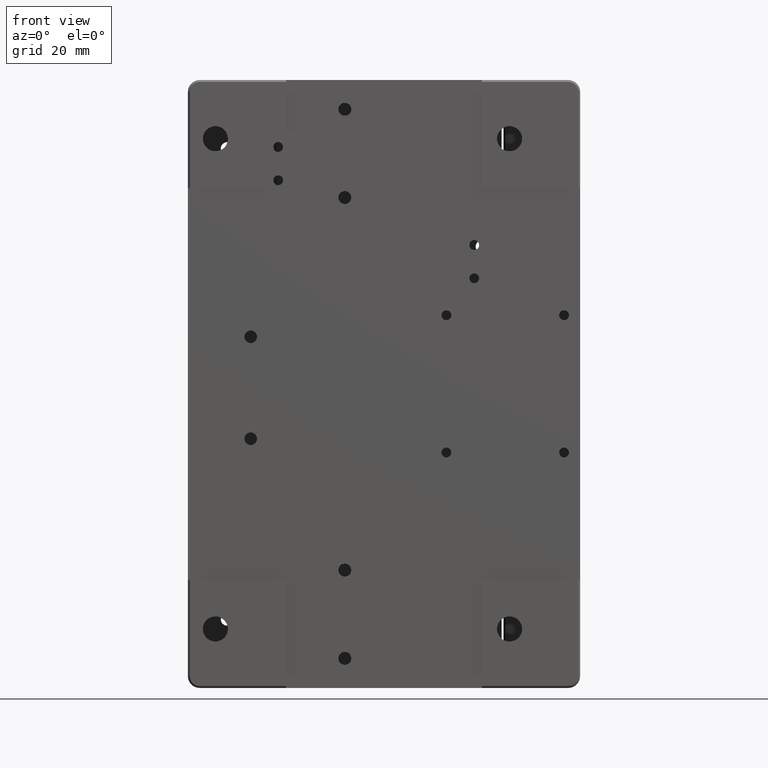
[diagram: clean part render]
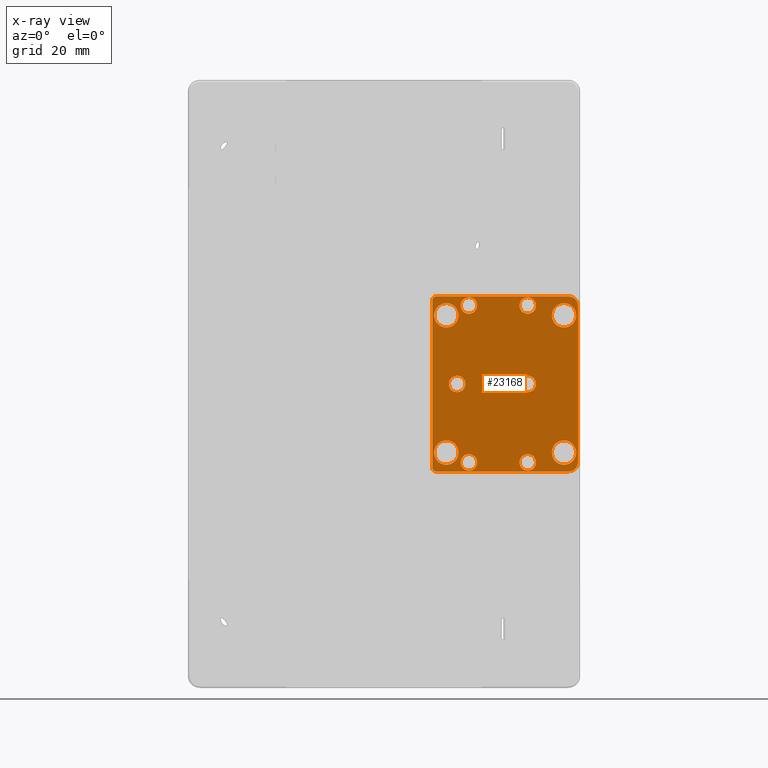
[diagram: x-ray — body ghosted, one internal face saturated and labeled with its STEP entity id]
A machine part, front view, then the same camera in x-ray: the body is ghosted and one INTERNAL B-rep face — a face not visible from any outside direction — is saturated and labeled: STEP entity #23168.
In plain terms, the highlighted planar face has unit normal (0, 1, 0).
Its self-contained STEP definition (entity closure, byte-faithful):
#171 = DIRECTION ( 'NONE',  ( 0.000000000000000000, 1.000000000000000000, 0.000000000000000000 ) ) ;
#197 = VERTEX_POINT ( 'NONE', #5784 ) ;
#691 = EDGE_CURVE ( 'NONE', #7508, #43371, #41311, .T. ) ;
#806 = VERTEX_POINT ( 'NONE', #13308 ) ;
#829 = CARTESIAN_POINT ( 'NONE',  ( 13.15000372727999967, 2.238232999982048277E-06, 22.29999852259000193 ) ) ;
#983 = DIRECTION ( 'NONE',  ( 5.067639653370492017E-05, 0.000000000000000000, -0.9999999987159514658 ) ) ;
#1028 = DIRECTION ( 'NONE',  ( 0.000000000000000000, 0.000000000000000000, -1.000000000000000000 ) ) ;
#1032 = DIRECTION ( 'NONE',  ( 0.000000000000000000, 1.000000000000000000, 0.000000000000000000 ) ) ;
#1087 = DIRECTION ( 'NONE',  ( 5.067639653818178068E-05, 0.000000000000000000, -0.9999999987159514658 ) ) ;
#1528 = CARTESIAN_POINT ( 'NONE',  ( 36.64999999999999858, 0.000000000000000000, -2.100000000000000089 ) ) ;
#2035 = CARTESIAN_POINT ( 'NONE',  ( 21.65000000000000213, 0.000000000000000000, 17.89999999999999858 ) ) ;
#2195 = DIRECTION ( 'NONE',  ( 0.000000000000000000, 0.000000000000000000, 1.000000000000000000 ) ) ;
#2454 = CIRCLE ( 'NONE', #21562, 2.100000000000000977 ) ;
#2570 = CARTESIAN_POINT ( 'NONE',  ( 42.80008407395404646, 1.355252715606880543E-17, 17.50000000000000000 ) ) ;
#2618 = CIRCLE ( 'NONE', #20970, 2.100000000000000977 ) ;
#2712 = AXIS2_PLACEMENT_3D ( 'NONE', #5646, #33267, #2195 ) ;
#3031 = ORIENTED_EDGE ( 'NONE', *, *, #691, .F. ) ;
#3202 = ORIENTED_EDGE ( 'NONE', *, *, #15530, .F. ) ;
#3394 = EDGE_CURVE ( 'NONE', #24703, #19573, #42906, .T. ) ;
#3492 = CARTESIAN_POINT ( 'NONE',  ( 36.64999999999999858, 0.000000000000000000, 2.100000000000000089 ) ) ;
#3854 = ORIENTED_EDGE ( 'NONE', *, *, #32404, .F. ) ;
#3955 = FACE_BOUND ( 'NONE', #14637, .T. ) ;
#4055 = EDGE_CURVE ( 'NONE', #24182, #197, #21672, .T. ) ;
#4079 = CIRCLE ( 'NONE', #2712, 2.100000000000000977 ) ;
#4179 = DIRECTION ( 'NONE',  ( 0.000000000000000000, 1.000000000000000000, 0.000000000000000000 ) ) ;
#4641 = CARTESIAN_POINT ( 'NONE',  ( 15.90000000000000036, 0.000000000000000000, 17.50000000000000000 ) ) ;
#4722 = EDGE_LOOP ( 'NONE', ( #19922, #13649, #27297 ) ) ;
#4814 = AXIS2_PLACEMENT_3D ( 'NONE', #26145, #22674, #18074 ) ;
#4826 = EDGE_CURVE ( 'NONE', #21329, #44485, #14168, .T. ) ;
#4947 = VERTEX_POINT ( 'NONE', #8271 ) ;
#5088 = DIRECTION ( 'NONE',  ( 0.000000000000000000, 1.000000000000000000, 0.000000000000000000 ) ) ;
#5157 = VECTOR ( 'NONE', #11743, 1000.000000000000114 ) ;
#5540 = VERTEX_POINT ( 'NONE', #23250 ) ;
#5582 = EDGE_LOOP ( 'NONE', ( #7676, #24979, #43119 ) ) ;
#5646 = CARTESIAN_POINT ( 'NONE',  ( 36.64999999999999858, 0.000000000000000000, 20.00000000000000000 ) ) ;
#5784 = CARTESIAN_POINT ( 'NONE',  ( 15.90005236288000212, 1.185932199969028100E-05, -14.40006628545000034 ) ) ;
#6090 = CARTESIAN_POINT ( 'NONE',  ( 12.35000144212000350, 2.244535000136410607E-06, -21.49999600828000368 ) ) ;
#6302 = DIRECTION ( 'NONE',  ( 0.000000000000000000, 1.000000000000000000, 0.000000000000000000 ) ) ;
#6714 = CARTESIAN_POINT ( 'NONE',  ( 45.90005236288000390, 1.185932199969028100E-05, 20.59993371455000144 ) ) ;
#6947 = EDGE_LOOP ( 'NONE', ( #28662, #38601 ) ) ;
#7181 = DIRECTION ( 'NONE',  ( 0.000000000000000000, 1.000000000000000000, 0.000000000000000000 ) ) ;
#7383 = FACE_OUTER_BOUND ( 'NONE', #19954, .T. ) ;
#7418 = VERTEX_POINT ( 'NONE', #12269 ) ;
#7508 = VERTEX_POINT ( 'NONE', #20296 ) ;
#7625 = FACE_BOUND ( 'NONE', #25294, .T. ) ;
#7676 = ORIENTED_EDGE ( 'NONE', *, *, #4826, .F. ) ;
#7721 = EDGE_CURVE ( 'NONE', #24649, #31398, #8810, .T. ) ;
#7827 = CARTESIAN_POINT ( 'NONE',  ( 36.64999999999999858, 0.000000000000000000, -22.10000000000000142 ) ) ;
#7857 = FACE_BOUND ( 'NONE', #33474, .T. ) ;
#8068 = DIRECTION ( 'NONE',  ( 0.000000000000000000, 1.000000000000000000, 0.000000000000000000 ) ) ;
#8271 = CARTESIAN_POINT ( 'NONE',  ( 21.65000000000000213, 0.000000000000000000, -22.10000000000000142 ) ) ;
#8810 = CIRCLE ( 'NONE', #13192, 2.100000000000000089 ) ;
#8821 = DIRECTION ( 'NONE',  ( 5.067639653370492017E-05, 0.000000000000000000, 0.9999999987159514658 ) ) ;
#8828 = AXIS2_PLACEMENT_3D ( 'NONE', #33055, #9569, #13243 ) ;
#8937 = AXIS2_PLACEMENT_3D ( 'NONE', #29113, #29571, #18267 ) ;
#8972 = LINE ( 'NONE', #25787, #42767 ) ;
#9382 = EDGE_CURVE ( 'NONE', #16598, #806, #30896, .T. ) ;
#9503 = DIRECTION ( 'NONE',  ( 0.000000000000000000, 0.000000000000000000, -1.000000000000000000 ) ) ;
#9569 = DIRECTION ( 'NONE',  ( 0.000000000000000000, 1.000000000000000000, 0.000000000000000000 ) ) ;
#9720 = CARTESIAN_POINT ( 'NONE',  ( 21.65000000063200147, 0.000000000000000000, -17.89999999999999858 ) ) ;
#9875 = ORIENTED_EDGE ( 'NONE', *, *, #34959, .F. ) ;
#9969 = CARTESIAN_POINT ( 'NONE',  ( 12.80008407395405357, 1.355252715606880543E-17, -17.50000000000000000 ) ) ;
#9972 = DIRECTION ( 'NONE',  ( 5.067639653818178068E-05, 0.000000000000000000, -0.9999999987159514658 ) ) ;
#10061 = VERTEX_POINT ( 'NONE', #42989 ) ;
#10438 = DIRECTION ( 'NONE',  ( 0.000000000000000000, 1.000000000000000000, 0.000000000000000000 ) ) ;
#10765 = VERTEX_POINT ( 'NONE', #39426 ) ;
#10851 = FACE_BOUND ( 'NONE', #5582, .T. ) ;
#10873 = DIRECTION ( 'NONE',  ( 0.000000000000000000, 0.000000000000000000, 1.000000000000000000 ) ) ;
#10887 = DIRECTION ( 'NONE',  ( 0.000000000000000000, 1.000000000000000000, 0.000000000000000000 ) ) ;
#11463 = DIRECTION ( 'NONE',  ( 0.000000000000000000, 1.000000000000000000, 0.000000000000000000 ) ) ;
#11743 = DIRECTION ( 'NONE',  ( 0.9999999999999996669, 1.910396004777999435E-08, 1.804235615058999541E-08 ) ) ;
#11813 = CARTESIAN_POINT ( 'NONE',  ( 15.90000000000000036, 0.000000000000000000, -17.50000000000000000 ) ) ;
#12011 = ORIENTED_EDGE ( 'NONE', *, *, #42827, .F. ) ;
#12269 = CARTESIAN_POINT ( 'NONE',  ( 15.90005236610000239, 1.185932199969028100E-05, -20.59993371455000144 ) ) ;
#12322 = CARTESIAN_POINT ( 'NONE',  ( 45.90005236609999884, 1.185932199969028100E-05, 14.40006628545000034 ) ) ;
#12820 = ORIENTED_EDGE ( 'NONE', *, *, #25928, .F. ) ;
#13010 = DIRECTION ( 'NONE',  ( 0.000000000000000000, 0.000000000000000000, -1.000000000000000000 ) ) ;
#13192 = AXIS2_PLACEMENT_3D ( 'NONE', #25582, #8068, #35684 ) ;
#13243 = DIRECTION ( 'NONE',  ( 5.067639653818178068E-05, 0.000000000000000000, -0.9999999987159514658 ) ) ;
#13308 = CARTESIAN_POINT ( 'NONE',  ( 13.15000653909000050, 1.929484000091213902E-06, -22.29999927791000047 ) ) ;
#13466 = CARTESIAN_POINT ( 'NONE',  ( 36.64999999999999858, 0.000000000000000000, 20.00000000000000000 ) ) ;
#13600 = CARTESIAN_POINT ( 'NONE',  ( 36.64999999999999858, 0.000000000000000000, 17.89999999999999858 ) ) ;
#13649 = ORIENTED_EDGE ( 'NONE', *, *, #17211, .F. ) ;
#13708 = DIRECTION ( 'NONE',  ( 0.000000000000000000, 1.000000000000000000, 0.000000000000000000 ) ) ;
#13724 = DIRECTION ( 'NONE',  ( 0.9999999998733717366, 0.000000000000000000, -1.591402963367344523E-05 ) ) ;
#13821 = CIRCLE ( 'NONE', #35862, 2.100000000000000977 ) ;
#13907 = EDGE_CURVE ( 'NONE', #35444, #4947, #17478, .T. ) ;
#14065 = CARTESIAN_POINT ( 'NONE',  ( 45.90005236288000390, 1.185932199969028100E-05, -14.40006628545000034 ) ) ;
#14090 = CARTESIAN_POINT ( 'NONE',  ( 47.14998538549000529, 2.579018000027633040E-06, -22.29999866446999945 ) ) ;
#14107 = ORIENTED_EDGE ( 'NONE', *, *, #30008, .F. ) ;
#14168 = CIRCLE ( 'NONE', #39889, 3.099915926045998305 ) ;
#14194 = DIRECTION ( 'NONE',  ( 5.067639653258571860E-05, 0.000000000000000000, -0.9999999987159514658 ) ) ;
#14197 = CIRCLE ( 'NONE', #43592, 2.100000000000000089 ) ;
#14411 = CARTESIAN_POINT ( 'NONE',  ( 49.44999825487000322, 2.716540999959937697E-06, 19.99998778823999857 ) ) ;
#14525 = FACE_BOUND ( 'NONE', #26908, .T. ) ;
#14637 = EDGE_LOOP ( 'NONE', ( #18907, #12820 ) ) ;
#14703 = ORIENTED_EDGE ( 'NONE', *, *, #40138, .F. ) ;
#14755 = CIRCLE ( 'NONE', #36820, 2.100000000000000977 ) ;
#15486 = DIRECTION ( 'NONE',  ( 5.067639653258571860E-05, 0.000000000000000000, -0.9999999987159514658 ) ) ;
#15530 = EDGE_CURVE ( 'NONE', #806, #20229, #29240, .T. ) ;
#15603 = EDGE_LOOP ( 'NONE', ( #15706, #35085 ) ) ;
#15706 = ORIENTED_EDGE ( 'NONE', *, *, #37831, .F. ) ;
#16300 = CARTESIAN_POINT ( 'NONE',  ( 15.90005236288000212, 1.185932199969028100E-05, 20.59993371455000144 ) ) ;
#16332 = CARTESIAN_POINT ( 'NONE',  ( 21.65000000000000213, 0.000000000000000000, 22.10000000000000142 ) ) ;
#16338 = EDGE_CURVE ( 'NONE', #21963, #24703, #24957, .T. ) ;
#16480 = CARTESIAN_POINT ( 'NONE',  ( 18.64999999999999858, 0.000000000000000000, 2.100000000000000089 ) ) ;
#16598 = VERTEX_POINT ( 'NONE', #6090 ) ;
#16766 = AXIS2_PLACEMENT_3D ( 'NONE', #28146, #7181, #10873 ) ;
#16876 = DIRECTION ( 'NONE',  ( 0.000000000000000000, 0.000000000000000000, -1.000000000000000000 ) ) ;
#16904 = AXIS2_PLACEMENT_3D ( 'NONE', #37995, #26785, #37108 ) ;
#16939 = DIRECTION ( 'NONE',  ( 0.000000000000000000, -1.000000000000000000, 0.000000000000000000 ) ) ;
#17202 = EDGE_CURVE ( 'NONE', #10765, #33318, #20823, .T. ) ;
#17211 = EDGE_CURVE ( 'NONE', #197, #7418, #42889, .T. ) ;
#17346 = CARTESIAN_POINT ( 'NONE',  ( 49.44999825487000322, 2.716540999959937697E-06, -19.99998780273000065 ) ) ;
#17478 = CIRCLE ( 'NONE', #16766, 2.100000000000000977 ) ;
#17975 = FACE_BOUND ( 'NONE', #6947, .T. ) ;
#18074 = DIRECTION ( 'NONE',  ( 0.000000000000000000, 0.000000000000000000, 1.000000000000000000 ) ) ;
#18238 = CARTESIAN_POINT ( 'NONE',  ( 36.64999999999999858, 0.000000000000000000, -20.00000000000000000 ) ) ;
#18267 = DIRECTION ( 'NONE',  ( 1.398312480178883212E-05, 0.000000000000000000, 0.9999999999022360919 ) ) ;
#18540 = DIRECTION ( 'NONE',  ( 5.067639653818178068E-05, 0.000000000000000000, 0.9999999987159514658 ) ) ;
#18550 = CARTESIAN_POINT ( 'NONE',  ( 15.90000000000000036, 0.000000000000000000, 17.50000000000000000 ) ) ;
#18671 = DIRECTION ( 'NONE',  ( 0.000000000000000000, 1.000000000000000000, 0.000000000000000000 ) ) ;
#18814 = CARTESIAN_POINT ( 'NONE',  ( 21.65000000000000213, 0.000000000000000000, 20.00000000000000000 ) ) ;
#18907 = ORIENTED_EDGE ( 'NONE', *, *, #37878, .F. ) ;
#19096 = VECTOR ( 'NONE', #43177, 1000.000000000000000 ) ;
#19158 = AXIS2_PLACEMENT_3D ( 'NONE', #4641, #18671, #39825 ) ;
#19573 = VERTEX_POINT ( 'NONE', #34637 ) ;
#19841 = VECTOR ( 'NONE', #22368, 1000.000000000000000 ) ;
#19922 = ORIENTED_EDGE ( 'NONE', *, *, #21745, .F. ) ;
#19954 = EDGE_LOOP ( 'NONE', ( #27931, #31601, #3854, #23613, #14107, #27287, #32680, #3202 ) ) ;
#20099 = DIRECTION ( 'NONE',  ( 0.000000000000000000, 1.000000000000000000, 0.000000000000000000 ) ) ;
#20112 = AXIS2_PLACEMENT_3D ( 'NONE', #40330, #44462, #9503 ) ;
#20229 = VERTEX_POINT ( 'NONE', #14090 ) ;
#20296 = CARTESIAN_POINT ( 'NONE',  ( 36.64999999999999858, 0.000000000000000000, -17.89999999999999858 ) ) ;
#20469 = ORIENTED_EDGE ( 'NONE', *, *, #16338, .F. ) ;
#20513 = CIRCLE ( 'NONE', #19158, 3.099915926046000081 ) ;
#20737 = AXIS2_PLACEMENT_3D ( 'NONE', #40014, #23446, #36784 ) ;
#20823 = CIRCLE ( 'NONE', #20112, 2.100000000000000089 ) ;
#20970 = AXIS2_PLACEMENT_3D ( 'NONE', #34380, #6302, #41945 ) ;
#21009 = DIRECTION ( 'NONE',  ( 0.000000000000000000, 0.000000000000000000, -1.000000000000000000 ) ) ;
#21039 = LINE ( 'NONE', #17346, #19841 ) ;
#21204 = DIRECTION ( 'NONE',  ( 0.000000000000000000, 0.000000000000000000, -1.000000000000000000 ) ) ;
#21329 = VERTEX_POINT ( 'NONE', #12322 ) ;
#21448 = DIRECTION ( 'NONE',  ( 0.000000000000000000, 1.000000000000000000, 0.000000000000000000 ) ) ;
#21562 = AXIS2_PLACEMENT_3D ( 'NONE', #41930, #10438, #21009 ) ;
#21668 = EDGE_CURVE ( 'NONE', #24254, #21329, #25774, .T. ) ;
#21672 = CIRCLE ( 'NONE', #37839, 3.099915926046000081 ) ;
#21677 = PLANE ( 'NONE',  #38964 ) ;
#21745 = EDGE_CURVE ( 'NONE', #7418, #24182, #43377, .T. ) ;
#21963 = VERTEX_POINT ( 'NONE', #14065 ) ;
#22076 = AXIS2_PLACEMENT_3D ( 'NONE', #39644, #32304, #42412 ) ;
#22167 = EDGE_CURVE ( 'NONE', #41142, #10061, #20513, .T. ) ;
#22322 = DIRECTION ( 'NONE',  ( -0.9999999999999996669, -1.910395611319999711E-08, 1.804234294478999596E-08 ) ) ;
#22329 = EDGE_CURVE ( 'NONE', #44485, #24254, #23497, .T. ) ;
#22368 = DIRECTION ( 'NONE',  ( 0.000000000000000000, 0.000000000000000000, 1.000000000000000000 ) ) ;
#22674 = DIRECTION ( 'NONE',  ( 0.000000000000000000, 1.000000000000000000, 0.000000000000000000 ) ) ;
#22817 = EDGE_CURVE ( 'NONE', #20229, #42593, #27947, .T. ) ;
#23168 = ADVANCED_FACE ( 'NONE', ( #7383, #3955, #14525, #28813, #7857, #17975, #25373, #7625, #39369, #35025, #10851 ), #21677, .T. ) ;
#23250 = CARTESIAN_POINT ( 'NONE',  ( 47.14996804223000026, 7.645532999669274465E-06, 22.29999556301000041 ) ) ;
#23446 = DIRECTION ( 'NONE',  ( 0.000000000000000000, 1.000000000000000000, 0.000000000000000000 ) ) ;
#23497 = CIRCLE ( 'NONE', #40384, 3.099915926045998305 ) ;
#23613 = ORIENTED_EDGE ( 'NONE', *, *, #44685, .F. ) ;
#24182 = VERTEX_POINT ( 'NONE', #9969 ) ;
#24221 = CIRCLE ( 'NONE', #8828, 3.099915926045998305 ) ;
#24254 = VERTEX_POINT ( 'NONE', #6714 ) ;
#24289 = CIRCLE ( 'NONE', #39703, 2.299995563234997764 ) ;
#24378 = CIRCLE ( 'NONE', #8937, 0.7999974035537001926 ) ;
#24649 = VERTEX_POINT ( 'NONE', #3492 ) ;
#24703 = VERTEX_POINT ( 'NONE', #32021 ) ;
#24957 = CIRCLE ( 'NONE', #30115, 3.099915926045998305 ) ;
#24979 = ORIENTED_EDGE ( 'NONE', *, *, #21668, .F. ) ;
#25000 = CARTESIAN_POINT ( 'NONE',  ( 45.89999999999999858, 0.000000000000000000, -17.50000000000000000 ) ) ;
#25294 = EDGE_LOOP ( 'NONE', ( #38176, #37287, #33371 ) ) ;
#25373 = FACE_BOUND ( 'NONE', #43653, .T. ) ;
#25582 = CARTESIAN_POINT ( 'NONE',  ( 36.64999999999999858, 0.000000000000000000, 0.000000000000000000 ) ) ;
#25604 = VERTEX_POINT ( 'NONE', #14411 ) ;
#25774 = CIRCLE ( 'NONE', #42620, 3.099915926046000081 ) ;
#25787 = CARTESIAN_POINT ( 'NONE',  ( 47.14998934372000150, 2.887767000352148283E-06, 22.29999790915000091 ) ) ;
#25830 = VERTEX_POINT ( 'NONE', #43165 ) ;
#25928 = EDGE_CURVE ( 'NONE', #44474, #29628, #27474, .T. ) ;
#26034 = EDGE_CURVE ( 'NONE', #42593, #25604, #21039, .T. ) ;
#26145 = CARTESIAN_POINT ( 'NONE',  ( 18.64999999999999858, 0.000000000000000000, 0.000000000000000000 ) ) ;
#26785 = DIRECTION ( 'NONE',  ( 0.000000000000000000, -1.000000000000000000, 0.000000000000000000 ) ) ;
#26908 = EDGE_LOOP ( 'NONE', ( #43951, #14703 ) ) ;
#27287 = ORIENTED_EDGE ( 'NONE', *, *, #26034, .F. ) ;
#27297 = ORIENTED_EDGE ( 'NONE', *, *, #4055, .F. ) ;
#27474 = CIRCLE ( 'NONE', #33344, 2.100000000000000977 ) ;
#27489 = ORIENTED_EDGE ( 'NONE', *, *, #30567, .F. ) ;
#27493 = DIRECTION ( 'NONE',  ( 0.000000000000000000, 1.000000000000000000, 0.000000000000000000 ) ) ;
#27645 = ORIENTED_EDGE ( 'NONE', *, *, #7721, .F. ) ;
#27745 = ORIENTED_EDGE ( 'NONE', *, *, #3394, .F. ) ;
#27899 = CARTESIAN_POINT ( 'NONE',  ( 45.89999999999999858, 0.000000000000000000, 17.50000000000000000 ) ) ;
#27931 = ORIENTED_EDGE ( 'NONE', *, *, #9382, .F. ) ;
#27947 = CIRCLE ( 'NONE', #22076, 2.299995563233998563 ) ;
#27986 = EDGE_CURVE ( 'NONE', #25830, #16598, #39721, .T. ) ;
#28146 = CARTESIAN_POINT ( 'NONE',  ( 21.65000000000000213, 0.000000000000000000, -20.00000000000000000 ) ) ;
#28192 = EDGE_CURVE ( 'NONE', #34986, #41142, #24221, .T. ) ;
#28450 = DIRECTION ( 'NONE',  ( 0.000000000000000000, 1.000000000000000000, 0.000000000000000000 ) ) ;
#28662 = ORIENTED_EDGE ( 'NONE', *, *, #13907, .F. ) ;
#28813 = FACE_BOUND ( 'NONE', #15603, .T. ) ;
#28913 = DIRECTION ( 'NONE',  ( 5.067639653818178068E-05, 0.000000000000000000, -0.9999999987159514658 ) ) ;
#29113 = CARTESIAN_POINT ( 'NONE',  ( 13.15000000000000213, 5.696930999860017053E-06, 21.50000000000000000 ) ) ;
#29163 = CARTESIAN_POINT ( 'NONE',  ( 12.35000144212000350, 2.244535000136410607E-06, 21.49999600659999999 ) ) ;
#29240 = LINE ( 'NONE', #43253, #5157 ) ;
#29553 = AXIS2_PLACEMENT_3D ( 'NONE', #18550, #32130, #28913 ) ;
#29571 = DIRECTION ( 'NONE',  ( 0.000000000000000000, -1.000000000000000000, 0.000000000000000000 ) ) ;
#29628 = VERTEX_POINT ( 'NONE', #41829 ) ;
#29999 = CARTESIAN_POINT ( 'NONE',  ( 15.90000000000000036, 0.000000000000000000, -17.50000000000000000 ) ) ;
#30008 = EDGE_CURVE ( 'NONE', #25604, #5540, #24289, .T. ) ;
#30115 = AXIS2_PLACEMENT_3D ( 'NONE', #25000, #42451, #18540 ) ;
#30251 = CIRCLE ( 'NONE', #31716, 3.099915926046000081 ) ;
#30306 = CARTESIAN_POINT ( 'NONE',  ( 45.89999999999999858, 0.000000000000000000, -17.50000000000000000 ) ) ;
#30567 = EDGE_CURVE ( 'NONE', #43371, #7508, #14755, .T. ) ;
#30896 = CIRCLE ( 'NONE', #16904, 0.7999974035536002726 ) ;
#30897 = AXIS2_PLACEMENT_3D ( 'NONE', #11813, #32977, #15486 ) ;
#31289 = EDGE_CURVE ( 'NONE', #10061, #34986, #41275, .T. ) ;
#31398 = VERTEX_POINT ( 'NONE', #1528 ) ;
#31601 = ORIENTED_EDGE ( 'NONE', *, *, #27986, .F. ) ;
#31716 = AXIS2_PLACEMENT_3D ( 'NONE', #30306, #13708, #40643 ) ;
#31916 = AXIS2_PLACEMENT_3D ( 'NONE', #36593, #5088, #983 ) ;
#32021 = CARTESIAN_POINT ( 'NONE',  ( 45.90005236609999884, 1.185932199969028100E-05, -20.59993371455000144 ) ) ;
#32130 = DIRECTION ( 'NONE',  ( 0.000000000000000000, 1.000000000000000000, 0.000000000000000000 ) ) ;
#32304 = DIRECTION ( 'NONE',  ( 0.000000000000000000, -1.000000000000000000, 0.000000000000000000 ) ) ;
#32404 = EDGE_CURVE ( 'NONE', #34654, #25830, #24378, .T. ) ;
#32680 = ORIENTED_EDGE ( 'NONE', *, *, #22817, .F. ) ;
#32977 = DIRECTION ( 'NONE',  ( 0.000000000000000000, 1.000000000000000000, 0.000000000000000000 ) ) ;
#33055 = CARTESIAN_POINT ( 'NONE',  ( 15.90000000000000036, 0.000000000000000000, 17.50000000000000000 ) ) ;
#33267 = DIRECTION ( 'NONE',  ( 0.000000000000000000, 1.000000000000000000, 0.000000000000000000 ) ) ;
#33318 = VERTEX_POINT ( 'NONE', #16480 ) ;
#33344 = AXIS2_PLACEMENT_3D ( 'NONE', #13466, #37377, #13010 ) ;
#33371 = ORIENTED_EDGE ( 'NONE', *, *, #28192, .F. ) ;
#33441 = CARTESIAN_POINT ( 'NONE',  ( 45.89999999999999858, 0.000000000000000000, 17.50000000000000000 ) ) ;
#33474 = EDGE_LOOP ( 'NONE', ( #3031, #27489 ) ) ;
#34380 = CARTESIAN_POINT ( 'NONE',  ( 21.65000000000000213, 0.000000000000000000, 20.00000000000000000 ) ) ;
#34637 = CARTESIAN_POINT ( 'NONE',  ( 42.80008407395404646, 1.355252715606880543E-17, -17.50000000000000000 ) ) ;
#34654 = VERTEX_POINT ( 'NONE', #829 ) ;
#34911 = CARTESIAN_POINT ( 'NONE',  ( 15.90000000000000036, 0.000000000000000000, -17.50000000000000000 ) ) ;
#34959 = EDGE_CURVE ( 'NONE', #31398, #24649, #14197, .T. ) ;
#34986 = VERTEX_POINT ( 'NONE', #45168 ) ;
#35025 = FACE_BOUND ( 'NONE', #42036, .T. ) ;
#35085 = ORIENTED_EDGE ( 'NONE', *, *, #17202, .F. ) ;
#35444 = VERTEX_POINT ( 'NONE', #9720 ) ;
#35472 = DIRECTION ( 'NONE',  ( 5.067639653818178068E-05, 0.000000000000000000, 0.9999999987159514658 ) ) ;
#35684 = DIRECTION ( 'NONE',  ( 0.000000000000000000, 0.000000000000000000, 1.000000000000000000 ) ) ;
#35695 = CARTESIAN_POINT ( 'NONE',  ( 30.90000000857250839, 0.000000000000000000, -6.750155989721000880E-11 ) ) ;
#35817 = VERTEX_POINT ( 'NONE', #16332 ) ;
#35862 = AXIS2_PLACEMENT_3D ( 'NONE', #18814, #11463, #39513 ) ;
#36593 = CARTESIAN_POINT ( 'NONE',  ( 45.89999999999999858, 0.000000000000000000, -17.50000000000000000 ) ) ;
#36784 = DIRECTION ( 'NONE',  ( 0.000000000000000000, 0.000000000000000000, 1.000000000000000000 ) ) ;
#36820 = AXIS2_PLACEMENT_3D ( 'NONE', #18238, #10887, #1028 ) ;
#36850 = EDGE_CURVE ( 'NONE', #35817, #37508, #2618, .T. ) ;
#36964 = CARTESIAN_POINT ( 'NONE',  ( 49.44999556293999632, 7.645532999669274465E-06, -19.99996341928000021 ) ) ;
#37108 = DIRECTION ( 'NONE',  ( -0.9999999998879649521, 0.000000000000000000, 1.496896923860925954E-05 ) ) ;
#37287 = ORIENTED_EDGE ( 'NONE', *, *, #22167, .F. ) ;
#37377 = DIRECTION ( 'NONE',  ( 0.000000000000000000, 1.000000000000000000, 0.000000000000000000 ) ) ;
#37508 = VERTEX_POINT ( 'NONE', #2035 ) ;
#37831 = EDGE_CURVE ( 'NONE', #33318, #10765, #44469, .T. ) ;
#37839 = AXIS2_PLACEMENT_3D ( 'NONE', #34911, #171, #14194 ) ;
#37878 = EDGE_CURVE ( 'NONE', #29628, #44474, #4079, .T. ) ;
#37995 = CARTESIAN_POINT ( 'NONE',  ( 13.15000000000000213, 5.696930999860017053E-06, -21.50000000000000000 ) ) ;
#38087 = CARTESIAN_POINT ( 'NONE',  ( 47.14999999999999858, 7.645532999669274465E-06, 20.00000000000000000 ) ) ;
#38176 = ORIENTED_EDGE ( 'NONE', *, *, #31289, .F. ) ;
#38601 = ORIENTED_EDGE ( 'NONE', *, *, #45288, .F. ) ;
#38964 = AXIS2_PLACEMENT_3D ( 'NONE', #35695, #4179, #21204 ) ;
#39369 = FACE_BOUND ( 'NONE', #4722, .T. ) ;
#39426 = CARTESIAN_POINT ( 'NONE',  ( 18.64999999999999858, 0.000000000000000000, -2.100000000000000089 ) ) ;
#39513 = DIRECTION ( 'NONE',  ( 0.000000000000000000, 0.000000000000000000, -1.000000000000000000 ) ) ;
#39644 = CARTESIAN_POINT ( 'NONE',  ( 47.14999999999999858, 7.645532999669274465E-06, -20.00000000000000000 ) ) ;
#39703 = AXIS2_PLACEMENT_3D ( 'NONE', #38087, #16939, #13724 ) ;
#39721 = LINE ( 'NONE', #29163, #19096 ) ;
#39825 = DIRECTION ( 'NONE',  ( 5.067639653370492017E-05, 0.000000000000000000, 0.9999999987159514658 ) ) ;
#39889 = AXIS2_PLACEMENT_3D ( 'NONE', #27899, #20099, #9972 ) ;
#40014 = CARTESIAN_POINT ( 'NONE',  ( 36.64999999999999858, 0.000000000000000000, -20.00000000000000000 ) ) ;
#40138 = EDGE_CURVE ( 'NONE', #37508, #35817, #13821, .T. ) ;
#40330 = CARTESIAN_POINT ( 'NONE',  ( 18.64999999999999858, 0.000000000000000000, 0.000000000000000000 ) ) ;
#40384 = AXIS2_PLACEMENT_3D ( 'NONE', #42247, #28450, #1087 ) ;
#40643 = DIRECTION ( 'NONE',  ( 5.067639653370492017E-05, 0.000000000000000000, -0.9999999987159514658 ) ) ;
#41142 = VERTEX_POINT ( 'NONE', #16300 ) ;
#41275 = CIRCLE ( 'NONE', #29553, 3.099915926045998305 ) ;
#41311 = CIRCLE ( 'NONE', #20737, 2.100000000000000977 ) ;
#41829 = CARTESIAN_POINT ( 'NONE',  ( 36.65000000063199792, 0.000000000000000000, 22.10000000000000142 ) ) ;
#41930 = CARTESIAN_POINT ( 'NONE',  ( 21.65000000000000213, 0.000000000000000000, -20.00000000000000000 ) ) ;
#41945 = DIRECTION ( 'NONE',  ( 0.000000000000000000, 0.000000000000000000, 1.000000000000000000 ) ) ;
#42036 = EDGE_LOOP ( 'NONE', ( #27745, #20469, #12011 ) ) ;
#42247 = CARTESIAN_POINT ( 'NONE',  ( 45.89999999999999858, 0.000000000000000000, 17.50000000000000000 ) ) ;
#42412 = DIRECTION ( 'NONE',  ( -1.904804728930166010E-05, 0.000000000000000000, -0.9999999998185858940 ) ) ;
#42451 = DIRECTION ( 'NONE',  ( 0.000000000000000000, 1.000000000000000000, 0.000000000000000000 ) ) ;
#42593 = VERTEX_POINT ( 'NONE', #36964 ) ;
#42620 = AXIS2_PLACEMENT_3D ( 'NONE', #33441, #1032, #8821 ) ;
#42767 = VECTOR ( 'NONE', #22322, 1000.000000000000114 ) ;
#42827 = EDGE_CURVE ( 'NONE', #19573, #21963, #30251, .T. ) ;
#42889 = CIRCLE ( 'NONE', #45085, 3.099915926045998305 ) ;
#42906 = CIRCLE ( 'NONE', #31916, 3.099915926046000081 ) ;
#42989 = CARTESIAN_POINT ( 'NONE',  ( 15.90005236610000239, 1.185932199969028100E-05, 14.40006628545000034 ) ) ;
#43119 = ORIENTED_EDGE ( 'NONE', *, *, #22329, .F. ) ;
#43165 = CARTESIAN_POINT ( 'NONE',  ( 12.35000259653999954, 5.696930999860017053E-06, 21.49998801984000352 ) ) ;
#43177 = DIRECTION ( 'NONE',  ( 0.000000000000000000, 0.000000000000000000, -1.000000000000000000 ) ) ;
#43253 = CARTESIAN_POINT ( 'NONE',  ( 13.15000653909000050, 1.929484000091213902E-06, -22.29999927791000047 ) ) ;
#43371 = VERTEX_POINT ( 'NONE', #7827 ) ;
#43377 = CIRCLE ( 'NONE', #30897, 3.099915926046000081 ) ;
#43592 = AXIS2_PLACEMENT_3D ( 'NONE', #44496, #27493, #16876 ) ;
#43653 = EDGE_LOOP ( 'NONE', ( #27645, #9875 ) ) ;
#43951 = ORIENTED_EDGE ( 'NONE', *, *, #36850, .F. ) ;
#44462 = DIRECTION ( 'NONE',  ( 0.000000000000000000, 1.000000000000000000, 0.000000000000000000 ) ) ;
#44469 = CIRCLE ( 'NONE', #4814, 2.100000000000000089 ) ;
#44474 = VERTEX_POINT ( 'NONE', #13600 ) ;
#44485 = VERTEX_POINT ( 'NONE', #2570 ) ;
#44496 = CARTESIAN_POINT ( 'NONE',  ( 36.64999999999999858, 0.000000000000000000, 0.000000000000000000 ) ) ;
#44685 = EDGE_CURVE ( 'NONE', #5540, #34654, #8972, .T. ) ;
#45085 = AXIS2_PLACEMENT_3D ( 'NONE', #29999, #21448, #35472 ) ;
#45168 = CARTESIAN_POINT ( 'NONE',  ( 12.80008407395405357, 1.355252715606880543E-17, 17.50000000000000000 ) ) ;
#45288 = EDGE_CURVE ( 'NONE', #4947, #35444, #2454, .T. ) ;